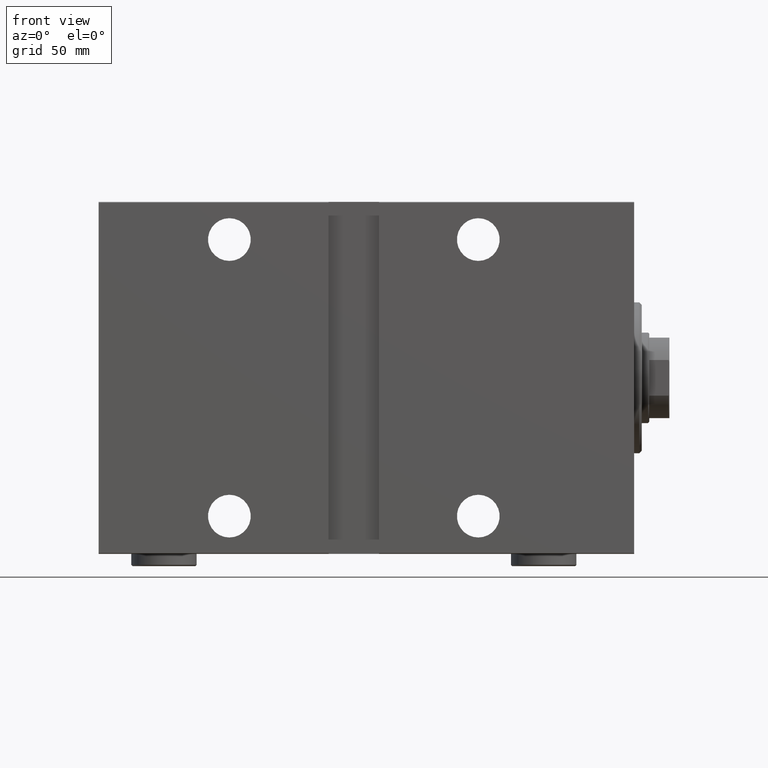
[diagram: clean part render]
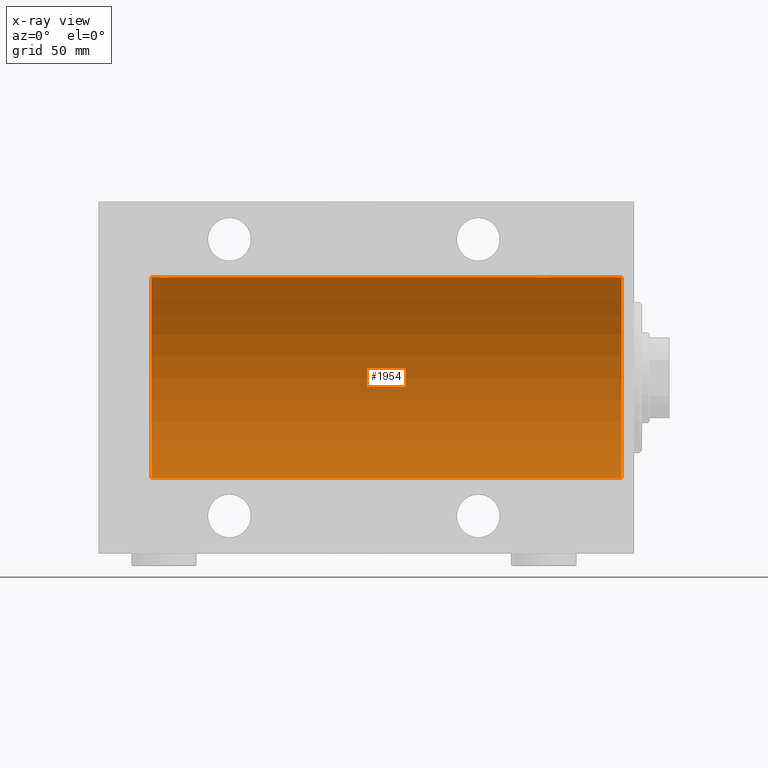
[diagram: x-ray — body ghosted, one internal face saturated and labeled with its STEP entity id]
A machine part, front view, then the same camera in x-ray: the body is ghosted and one INTERNAL B-rep face — a face not visible from any outside direction — is saturated and labeled: STEP entity #1954.
In plain terms, the highlighted cylindrical surface (partial cylindrical patch) has radius 40 mm, axis along (1, 0, -0).
Its self-contained STEP definition (entity closure, byte-faithful):
#230 = EDGE_CURVE ( 'NONE', #26867, #43347, #37299, .T. ) ;
#254 = CARTESIAN_POINT ( 'NONE',  ( 187.3910969250933647, -2.980812880639897688, 39.88879797994690080 ) ) ;
#622 = CARTESIAN_POINT ( 'NONE',  ( 37.32853644746295885, -2.696981015661930936, 39.90904630908465833 ) ) ;
#720 = DIRECTION ( 'NONE',  ( 0.000000000000000000, 0.000000000000000000, 1.000000000000000000 ) ) ;
#844 = CARTESIAN_POINT ( 'NONE',  ( 33.39566400087915810, -1.502129635934004614, 39.97212271185186694 ) ) ;
#1631 = CARTESIAN_POINT ( 'NONE',  ( 190.0000000000000000, 1.446721683758770418E-15, 40.00000000000000000 ) ) ;
#1954 = ADVANCED_FACE ( 'NONE', ( #30974 ), #30526, .F. ) ;
#2188 = ORIENTED_EDGE ( 'NONE', *, *, #14525, .F. ) ;
#2951 = CARTESIAN_POINT ( 'NONE',  ( 185.0153855218772208, -2.258217541132898631, 39.93644519243653690 ) ) ;
#2996 = CARTESIAN_POINT ( 'NONE',  ( 5.000000000000004441, 0.000000000000000000, 0.000000000000000000 ) ) ;
#3170 = CARTESIAN_POINT ( 'NONE',  ( 186.2213047658425182, -2.903766417398230271, 39.89448096967571189 ) ) ;
#3324 = EDGE_CURVE ( 'NONE', #43347, #39039, #40957, .T. ) ;
#3537 = CARTESIAN_POINT ( 'NONE',  ( 36.19560531073086906, -3.000157693440643758, 39.88732948994960026 ) ) ;
#3590 = DIRECTION ( 'NONE',  ( -1.000000000000000000, -0.000000000000000000, -0.000000000000000000 ) ) ;
#3949 = VERTEX_POINT ( 'NONE', #24223 ) ;
#3970 = CARTESIAN_POINT ( 'NONE',  ( 32.99999999999997158, -0.1957844162750552452, 40.00000000000000000 ) ) ;
#4173 = LINE ( 'NONE', #34487, #43044 ) ;
#4420 = CARTESIAN_POINT ( 'NONE',  ( 35.03061658105534804, -2.845855236045349734, 39.89870693240651889 ) ) ;
#5203 = CARTESIAN_POINT ( 'NONE',  ( 192.0000000000000000, 0.000000000000000000, 40.00000000000000000 ) ) ;
#5428 = AXIS2_PLACEMENT_3D ( 'NONE', #8324, #34823, #720 ) ;
#5976 = CARTESIAN_POINT ( 'NONE',  ( 192.0000000000000000, 0.000000000000000000, 40.00000000000000000 ) ) ;
#6136 = CARTESIAN_POINT ( 'NONE',  ( 32.99999999999999289, -1.483452932268112700E-23, 40.00000000000000000 ) ) ;
#7446 = ORIENTED_EDGE ( 'NONE', *, *, #11473, .T. ) ;
#7591 = CARTESIAN_POINT ( 'NONE',  ( 5.000000000000004441, 4.898587196589413026E-15, -40.00000000000000000 ) ) ;
#7791 = CARTESIAN_POINT ( 'NONE',  ( 33.61492399084646365, -1.830402106103518722, 39.95843610133494650 ) ) ;
#8324 = CARTESIAN_POINT ( 'NONE',  ( 192.0000000000000000, 0.000000000000000000, 0.000000000000000000 ) ) ;
#9692 = CARTESIAN_POINT ( 'NONE',  ( 185.4955691708653944, -2.602909538701757342, 39.91537030566259858 ) ) ;
#9917 = CARTESIAN_POINT ( 'NONE',  ( 184.6149239908464210, -1.830402106103516280, 39.95843610133492518 ) ) ;
#10134 = CARTESIAN_POINT ( 'NONE',  ( 189.9202617499165342, -0.7903958539027363672, 39.99381900068937767 ) ) ;
#10288 = CARTESIAN_POINT ( 'NONE',  ( 34.66775731134134730, -2.695129988695744494, 39.90917164320281074 ) ) ;
#10508 = CARTESIAN_POINT ( 'NONE',  ( 38.69537007708435539, -1.331594428131644747, 39.97823692017209396 ) ) ;
#10575 = CARTESIAN_POINT ( 'NONE',  ( 189.6018872812850020, -1.506322235190787895, 39.97196309111976831 ) ) ;
#10788 = CARTESIAN_POINT ( 'NONE',  ( 192.0000000000000000, 0.000000000000000000, 40.00000000000000000 ) ) ;
#11473 = EDGE_CURVE ( 'NONE', #3949, #39039, #27850, .T. ) ;
#11529 = DIRECTION ( 'NONE',  ( -1.000000000000000000, -0.000000000000000000, -0.000000000000000000 ) ) ;
#12654 = ORIENTED_EDGE ( 'NONE', *, *, #30970, .F. ) ;
#12982 = ORIENTED_EDGE ( 'NONE', *, *, #16405, .T. ) ;
#13061 = CARTESIAN_POINT ( 'NONE',  ( 186.6047751654642468, -2.980272303779546217, 39.88883864243170052 ) ) ;
#13279 = CARTESIAN_POINT ( 'NONE',  ( 190.0000000000000284, -0.3964922677423700081, 40.00000000000001421 ) ) ;
#13867 = AXIS2_PLACEMENT_3D ( 'NONE', #2996, #16689, #30368 ) ;
#13880 = CARTESIAN_POINT ( 'NONE',  ( 36.39109692509333627, -2.980812880639903906, 39.88879797994688658 ) ) ;
#13947 = CARTESIAN_POINT ( 'NONE',  ( 187.7745567882634532, -2.904869018727220364, 39.89440043036669437 ) ) ;
#14096 = CARTESIAN_POINT ( 'NONE',  ( 33.15334726986859692, -0.9668189122103387767, 39.98872185468385254 ) ) ;
#14325 = CARTESIAN_POINT ( 'NONE',  ( 37.50088468404035069, -2.604941918888315833, 39.91523680494983495 ) ) ;
#14421 = ORIENTED_EDGE ( 'NONE', *, *, #43879, .T. ) ;
#14525 = EDGE_CURVE ( 'NONE', #34101, #15290, #22021, .T. ) ;
#14545 = CARTESIAN_POINT ( 'NONE',  ( 33.01898122889073051, -0.3904143323715976166, 39.99856256910221219 ) ) ;
#14739 = DIRECTION ( 'NONE',  ( -1.000000000000000000, -0.000000000000000000, -0.000000000000000000 ) ) ;
#14762 = CARTESIAN_POINT ( 'NONE',  ( 37.82690184632411246, -2.387636253591820079, 39.92882473497731866 ) ) ;
#15290 = VERTEX_POINT ( 'NONE', #28018 ) ;
#16405 = EDGE_CURVE ( 'NONE', #34101, #31239, #21437, .T. ) ;
#16644 = CARTESIAN_POINT ( 'NONE',  ( 186.7995871398079828, -2.999840380514742666, 39.88735335562825668 ) ) ;
#16689 = DIRECTION ( 'NONE',  ( -1.000000000000000000, 0.000000000000000000, 0.000000000000000000 ) ) ;
#16868 = CARTESIAN_POINT ( 'NONE',  ( 187.9648932585351986, -2.847401743820454190, 39.89859630624609821 ) ) ;
#17096 = CARTESIAN_POINT ( 'NONE',  ( 184.0000000000000000, -0.1957844162750525807, 40.00000000000000000 ) ) ;
#17318 = CARTESIAN_POINT ( 'NONE',  ( 184.3027865941912182, -1.327859336864145590, 39.97836169682017982 ) ) ;
#17683 = CARTESIAN_POINT ( 'NONE',  ( 33.30278659419118270, -1.327859336864150253, 39.97836169682017982 ) ) ;
#19089 = CARTESIAN_POINT ( 'NONE',  ( 192.0000000000000000, 0.000000000000000000, 40.00000000000000000 ) ) ;
#19678 = DIRECTION ( 'NONE',  ( -1.000000000000000000, -0.000000000000000000, -0.000000000000000000 ) ) ;
#19770 = DIRECTION ( 'NONE',  ( 0.000000000000000000, 0.000000000000000000, 1.000000000000000000 ) ) ;
#20608 = CARTESIAN_POINT ( 'NONE',  ( 38.60188728128492386, -1.506322235190783232, 39.97196309111974699 ) ) ;
#20894 = CARTESIAN_POINT ( 'NONE',  ( 186.0306165810552841, -2.845855236045348402, 39.89870693240650468 ) ) ;
#21261 = CARTESIAN_POINT ( 'NONE',  ( 34.16955177177597847, -2.384933850258112553, 39.92898715513240404 ) ) ;
#21292 = ORIENTED_EDGE ( 'NONE', *, *, #230, .F. ) ;
#21437 = B_SPLINE_CURVE_WITH_KNOTS ( 'NONE', 3,
 ( #24862, #3970, #14545, #38308, #14096, #17683, #844, #7791, #37648, #31594, #21261, #37873, #10288, #4420, #41222, #31365, #38528, #3537, #13880, #23985, #30922, #622, #14325, #14762, #31811, #34951, #28221, #20608, #10508, #41007, #41659, #41874 ),
 .UNSPECIFIED., .F., .F.,
 ( 4, 2, 2, 2, 2, 2, 2, 2, 2, 2, 2, 2, 2, 2, 2, 4 ),
 ( 0.009382660366305105304, 0.009968941372944142842, 0.01055522237958318038, 0.01114150338622221965, 0.01172778439286125719, 0.01231406539950029473, 0.01290034640613933400, 0.01348662741277837154, 0.01407290841941740908, 0.01465918942605644835, 0.01524547043269548416, 0.01583175143933452517, 0.01641803244597356271, 0.01700431345261260024, 0.01759059445925163778, 0.01876315647252971286 ),
 .UNSPECIFIED. ) ;
#22021 = LINE ( 'NONE', #19089, #31259 ) ;
#23385 = CARTESIAN_POINT ( 'NONE',  ( 188.5008846840404146, -2.604941918888313612, 39.91523680494984916 ) ) ;
#23582 = EDGE_LOOP ( 'NONE', ( #21292, #43393, #14421, #2188, #12982, #12654, #7446, #35742 ) ) ;
#23833 = CARTESIAN_POINT ( 'NONE',  ( 189.6953700770844478, -1.331594428131642527, 39.97823692017210107 ) ) ;
#23985 = CARTESIAN_POINT ( 'NONE',  ( 36.77455678826341057, -2.904869018727228358, 39.89440043036668015 ) ) ;
#24223 = CARTESIAN_POINT ( 'NONE',  ( 184.0000000000000000, -1.482387970046064334E-23, 40.00000000000000000 ) ) ;
#24500 = CARTESIAN_POINT ( 'NONE',  ( 39.00000000000000000, 1.037715139942869821E-15, 40.00000000000000000 ) ) ;
#24632 = CIRCLE ( 'NONE', #13867, 40.00000000000000000 ) ;
#24862 = CARTESIAN_POINT ( 'NONE',  ( 32.99999999999999289, -1.483452932268112700E-23, 40.00000000000000000 ) ) ;
#26740 = CARTESIAN_POINT ( 'NONE',  ( 184.3956640008792078, -1.502129635934003948, 39.97212271185186694 ) ) ;
#26867 = VERTEX_POINT ( 'NONE', #27517 ) ;
#27185 = CARTESIAN_POINT ( 'NONE',  ( 184.7390238300525596, -1.981471132463162643, 39.95113231465138171 ) ) ;
#27404 = CARTESIAN_POINT ( 'NONE',  ( 184.0957482634864562, -0.7773146824711021363, 39.99291453282343412 ) ) ;
#27517 = CARTESIAN_POINT ( 'NONE',  ( 192.0000000000000000, 4.898587196589413026E-15, -40.00000000000000000 ) ) ;
#27850 = B_SPLINE_CURVE_WITH_KNOTS ( 'NONE', 3,
 ( #30541, #17096, #30768, #27404, #40631, #17318, #26740, #9917, #27185, #2951, #31208, #9692, #41073, #20894, #3170, #13061, #16644, #30989, #254, #13947, #16868, #41287, #23385, #37057, #34581, #43999, #44221, #10575, #23833, #10134, #13279, #40859 ),
 .UNSPECIFIED., .F., .F.,
 ( 4, 2, 2, 2, 2, 2, 2, 2, 2, 2, 2, 2, 2, 2, 2, 4 ),
 ( 0.009382660366305094896, 0.009968941372944130699, 0.01055522237958316650, 0.01114150338622220404, 0.01172778439286123985, 0.01231406539950027565, 0.01290034640613930972, 0.01348662741277834379, 0.01407290841941737959, 0.01465918942605641540, 0.01524547043269544946, 0.01583175143933448353, 0.01641803244597352107, 0.01700431345261255514, 0.01759059445925158921, 0.01876315647252969204 ),
 .UNSPECIFIED. ) ;
#28018 = CARTESIAN_POINT ( 'NONE',  ( 5.000000000000004441, 0.000000000000000000, 40.00000000000000000 ) ) ;
#28221 = CARTESIAN_POINT ( 'NONE',  ( 38.38251680911464803, -1.833695109615718355, 39.95828327492363741 ) ) ;
#29005 = LINE ( 'NONE', #5203, #43732 ) ;
#30368 = DIRECTION ( 'NONE',  ( 0.000000000000000000, 0.000000000000000000, 1.000000000000000000 ) ) ;
#30526 = CYLINDRICAL_SURFACE ( 'NONE', #37798, 40.00000000000000000 ) ;
#30541 = CARTESIAN_POINT ( 'NONE',  ( 184.0000000000000000, -1.482387970046064334E-23, 40.00000000000000000 ) ) ;
#30657 = VECTOR ( 'NONE', #19678, 1000.000000000000000 ) ;
#30768 = CARTESIAN_POINT ( 'NONE',  ( 184.0189812288907660, -0.3904143323715967839, 39.99856256910221219 ) ) ;
#30922 = CARTESIAN_POINT ( 'NONE',  ( 36.96489325853514174, -2.847401743820462183, 39.89859630624607689 ) ) ;
#30970 = EDGE_CURVE ( 'NONE', #3949, #31239, #29005, .T. ) ;
#30974 = FACE_OUTER_BOUND ( 'NONE', #23582, .T. ) ;
#30989 = CARTESIAN_POINT ( 'NONE',  ( 187.1956053107309685, -3.000157693440639761, 39.88732948994960736 ) ) ;
#31208 = CARTESIAN_POINT ( 'NONE',  ( 185.1695517717760140, -2.384933850258109445, 39.92898715513240404 ) ) ;
#31239 = VERTEX_POINT ( 'NONE', #24500 ) ;
#31259 = VECTOR ( 'NONE', #35689, 1000.000000000000000 ) ;
#31365 = CARTESIAN_POINT ( 'NONE',  ( 35.60477516546423260, -2.980272303779553766, 39.88883864243167920 ) ) ;
#31443 = EDGE_CURVE ( 'NONE', #26867, #38462, #4173, .T. ) ;
#31594 = CARTESIAN_POINT ( 'NONE',  ( 34.01538552187719233, -2.258217541132905293, 39.93644519243653690 ) ) ;
#31811 = CARTESIAN_POINT ( 'NONE',  ( 37.98136279514229585, -2.261082456166707111, 39.93628274425758207 ) ) ;
#33672 = CARTESIAN_POINT ( 'NONE',  ( 192.0000000000000000, 0.000000000000000000, 0.000000000000000000 ) ) ;
#34101 = VERTEX_POINT ( 'NONE', #6136 ) ;
#34487 = CARTESIAN_POINT ( 'NONE',  ( 192.0000000000000000, 4.898587196589413026E-15, -40.00000000000000000 ) ) ;
#34581 = CARTESIAN_POINT ( 'NONE',  ( 188.9813627951422745, -2.261082456166709775, 39.93628274425758207 ) ) ;
#34823 = DIRECTION ( 'NONE',  ( -1.000000000000000000, 0.000000000000000000, 0.000000000000000000 ) ) ;
#34951 = CARTESIAN_POINT ( 'NONE',  ( 38.25829670320502629, -1.984537326394305801, 39.95097977400578060 ) ) ;
#35689 = DIRECTION ( 'NONE',  ( -1.000000000000000000, -0.000000000000000000, -0.000000000000000000 ) ) ;
#35742 = ORIENTED_EDGE ( 'NONE', *, *, #3324, .F. ) ;
#37057 = CARTESIAN_POINT ( 'NONE',  ( 188.8269018463241764, -2.387636253591820079, 39.92882473497732576 ) ) ;
#37299 = CIRCLE ( 'NONE', #5428, 40.00000000000000000 ) ;
#37648 = CARTESIAN_POINT ( 'NONE',  ( 33.73902383005257377, -1.981471132463168416, 39.95113231465138881 ) ) ;
#37798 = AXIS2_PLACEMENT_3D ( 'NONE', #33672, #3590, #19770 ) ;
#37873 = CARTESIAN_POINT ( 'NONE',  ( 34.49556917086533758, -2.602909538701760006, 39.91537030566259148 ) ) ;
#38308 = CARTESIAN_POINT ( 'NONE',  ( 33.09574826348647036, -0.7773146824711036906, 39.99291453282343412 ) ) ;
#38462 = VERTEX_POINT ( 'NONE', #7591 ) ;
#38528 = CARTESIAN_POINT ( 'NONE',  ( 35.79958713980802543, -2.999840380514749327, 39.88735335562824247 ) ) ;
#39039 = VERTEX_POINT ( 'NONE', #1631 ) ;
#40631 = CARTESIAN_POINT ( 'NONE',  ( 184.1533472698686182, -0.9668189122103342248, 39.98872185468384544 ) ) ;
#40859 = CARTESIAN_POINT ( 'NONE',  ( 190.0000000000000000, 1.446721683758770418E-15, 40.00000000000000000 ) ) ;
#40957 = LINE ( 'NONE', #5976, #30657 ) ;
#41007 = CARTESIAN_POINT ( 'NONE',  ( 38.92026174991647025, -0.7903958539027386987, 39.99381900068935636 ) ) ;
#41073 = CARTESIAN_POINT ( 'NONE',  ( 185.6677573113414041, -2.695129988695745826, 39.90917164320281074 ) ) ;
#41222 = CARTESIAN_POINT ( 'NONE',  ( 35.22130476584258219, -2.903766417398241373, 39.89448096967571189 ) ) ;
#41287 = CARTESIAN_POINT ( 'NONE',  ( 188.3285364474629944, -2.696981015661923387, 39.90904630908469386 ) ) ;
#41659 = CARTESIAN_POINT ( 'NONE',  ( 39.00000000000000711, -0.3964922677423692865, 40.00000000000000711 ) ) ;
#41874 = CARTESIAN_POINT ( 'NONE',  ( 39.00000000000000000, 1.037715139942869821E-15, 40.00000000000000000 ) ) ;
#43044 = VECTOR ( 'NONE', #14739, 1000.000000000000000 ) ;
#43347 = VERTEX_POINT ( 'NONE', #10788 ) ;
#43393 = ORIENTED_EDGE ( 'NONE', *, *, #31443, .T. ) ;
#43732 = VECTOR ( 'NONE', #11529, 1000.000000000000000 ) ;
#43879 = EDGE_CURVE ( 'NONE', #38462, #15290, #24632, .T. ) ;
#43999 = CARTESIAN_POINT ( 'NONE',  ( 189.2582967032049623, -1.984537326394308909, 39.95097977400577349 ) ) ;
#44221 = CARTESIAN_POINT ( 'NONE',  ( 189.3825168091146622, -1.833695109615722352, 39.95828327492363030 ) ) ;